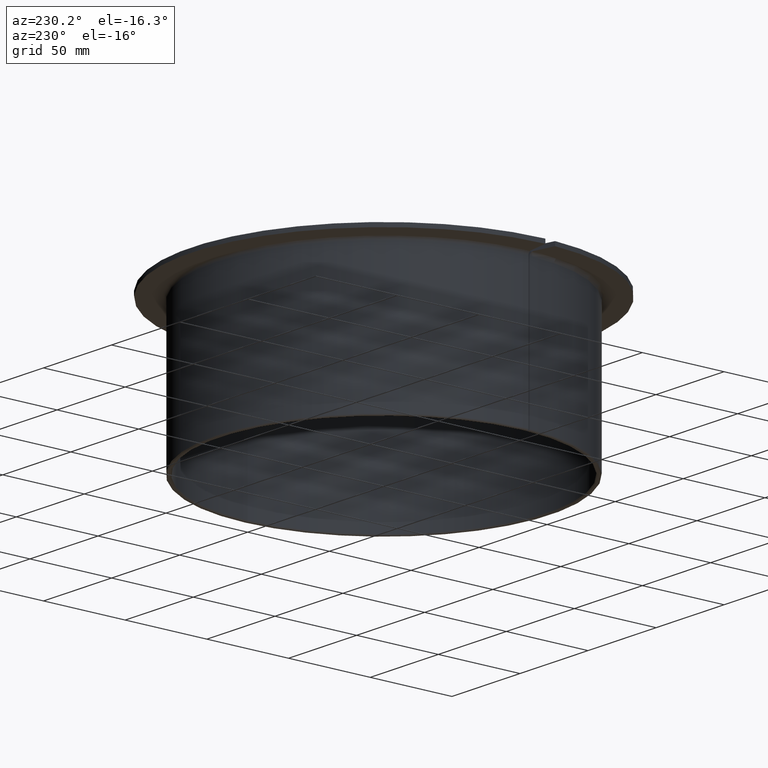
[diagram: clean part render]
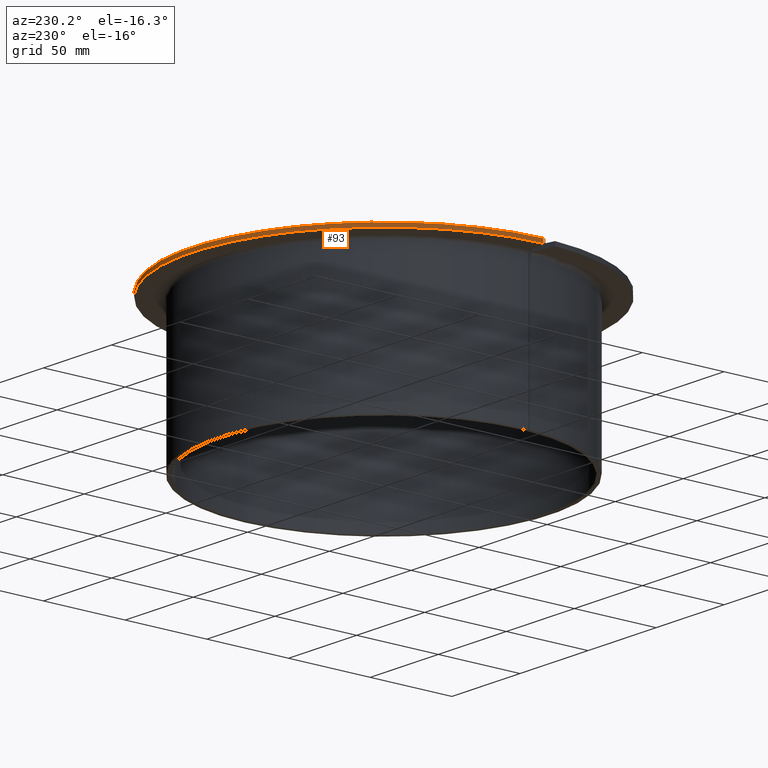
[diagram: same view with one face highlighted and labeled with its STEP entity id]
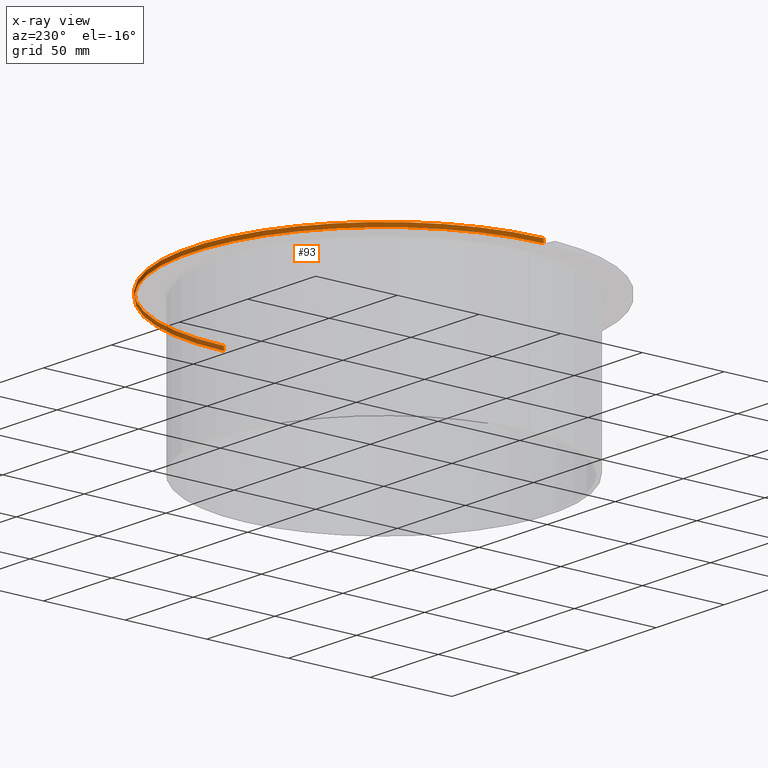
[diagram: x-ray of the same camera — body ghosted, the highlighted face saturated]
A machine part, auxiliary view. The second image highlights one B-rep face of the part: STEP entity #93.
The next image is the same camera in x-ray: the body ghosted, the highlighted face saturated — about 12% of this face is hidden behind the body in this view.
In plain terms, the highlighted cylindrical surface (partial cylindrical patch) has radius 117.5 mm, axis along (-0, -0, 1).
Its self-contained STEP definition (entity closure, byte-faithful):
#93=ADVANCED_FACE('',(#138),#139,.T.);
#138=FACE_OUTER_BOUND('',#190,.T.);
#139=CYLINDRICAL_SURFACE('',#191,117.5);
#190=EDGE_LOOP('',(#342,#343,#344,#345));
#191=AXIS2_PLACEMENT_3D('',#346,#347,#348);
#342=ORIENTED_EDGE('',*,*,#443,.T.);
#343=ORIENTED_EDGE('',*,*,#467,.F.);
#344=ORIENTED_EDGE('',*,*,#439,.T.);
#345=ORIENTED_EDGE('',*,*,#468,.T.);
#346=CARTESIAN_POINT('',(-7.04575888216064E-030,-3.7105956565641E-015,88.75));
#347=DIRECTION('',(-1.16269284789061E-031,-6.12323399573677E-017,1.0));
#348=DIRECTION('',(-1.0,1.87715863181855E-015,-1.32646929163973E-033));
#439=EDGE_CURVE('',#524,#525,#526,.T.);
#443=EDGE_CURVE('',#532,#533,#534,.T.);
#467=EDGE_CURVE('',#524,#533,#568,.T.);
#468=EDGE_CURVE('',#525,#532,#569,.T.);
#524=VERTEX_POINT('',#653);
#525=VERTEX_POINT('',#654);
#526=LINE('',#655,#656);
#532=VERTEX_POINT('',#663);
#533=VERTEX_POINT('',#664);
#534=LINE('',#665,#666);
#568=CIRCLE('',#753,117.5);
#569=CIRCLE('',#754,117.5);
#653=CARTESIAN_POINT('',(117.5,-2.38742875210172E-013,90.0));
#654=CARTESIAN_POINT('',(117.5,-2.38589794360279E-013,87.5));
#655=CARTESIAN_POINT('',(117.5,-2.38666334785226E-013,88.75));
#656=VECTOR('',#831,1.0);
#663=CARTESIAN_POINT('',(-117.5,2.31321683897044E-013,87.5));
#664=CARTESIAN_POINT('',(-117.5,2.31168603047151E-013,90.0));
#665=CARTESIAN_POINT('',(-117.5,2.31245143472097E-013,88.75));
#666=VECTOR('',#839,1.0);
#753=AXIS2_PLACEMENT_3D('',#882,#883,#884);
#754=AXIS2_PLACEMENT_3D('',#885,#886,#887);
#831=DIRECTION('',(1.16269284789061E-031,6.12323399573677E-017,-1.0));
#839=DIRECTION('',(-1.16269284789061E-031,-6.12323399573677E-017,1.0));
#882=CARTESIAN_POINT('',(-7.04575888216064E-030,-3.7105956565641E-015,90.0));
#883=DIRECTION('',(-1.16269284789061E-031,-6.12323399573677E-017,1.0));
#884=DIRECTION('',(-1.0,1.87715863181855E-015,-1.32646929163973E-033));
#885=CARTESIAN_POINT('',(-7.04575888216064E-030,-3.7105956565641E-015,87.5));
#886=DIRECTION('',(-1.16269284789061E-031,-6.12323399573677E-017,1.0));
#887=DIRECTION('',(-1.0,1.87715863181855E-015,-1.32646929163973E-033));